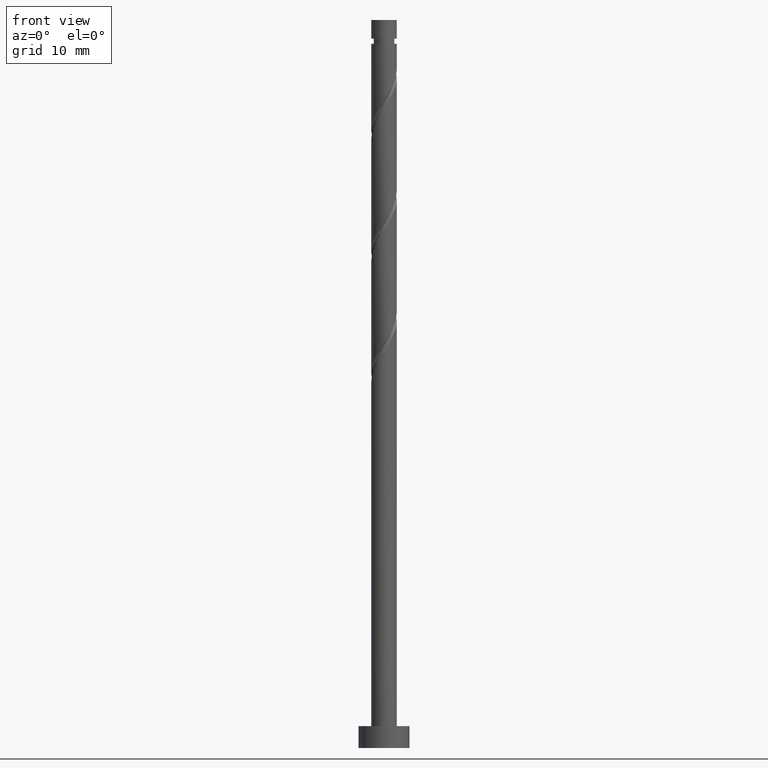
[diagram: clean part render]
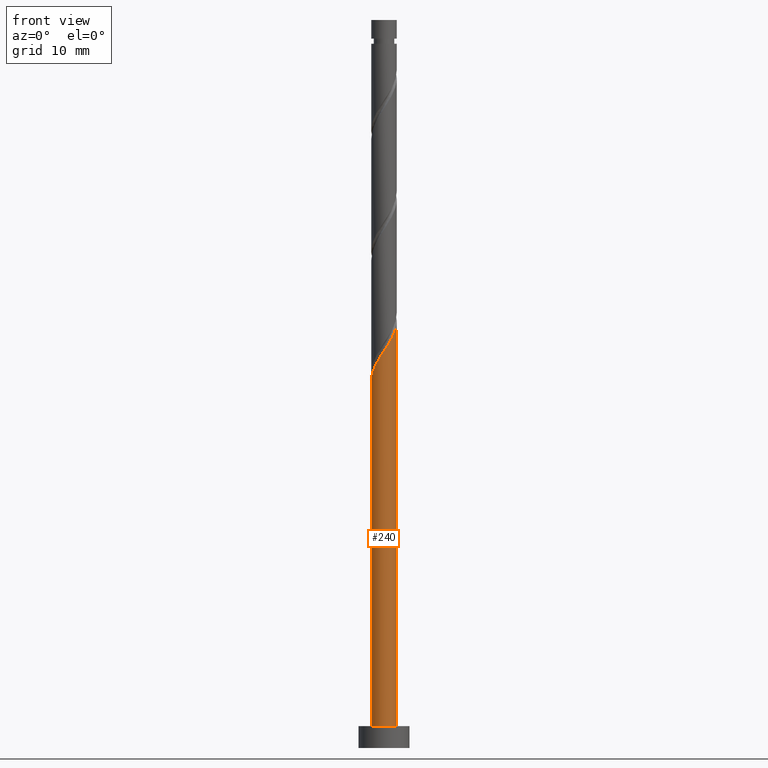
[diagram: same view with one face highlighted and labeled with its STEP entity id]
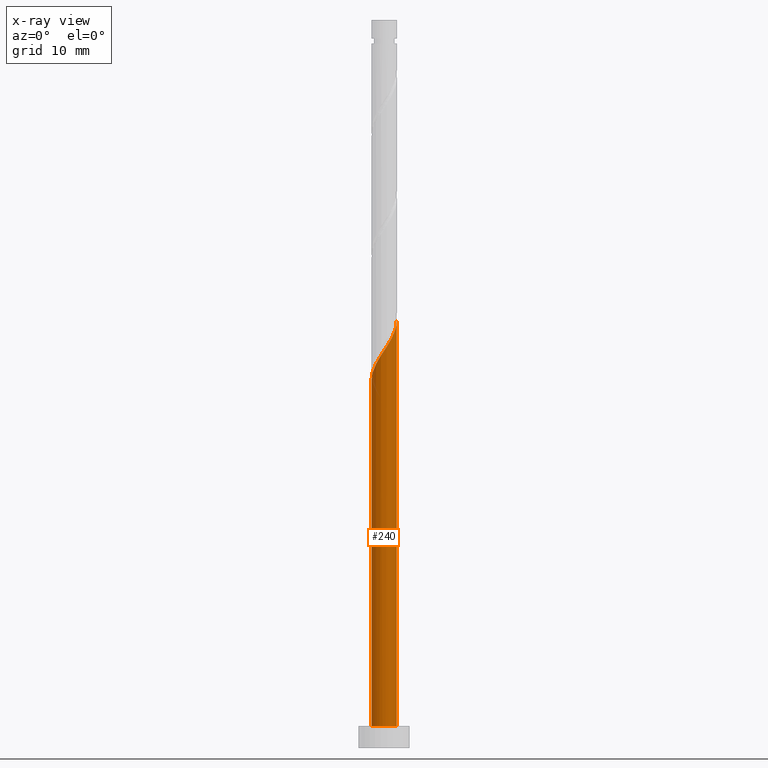
[diagram: x-ray of the same camera — body ghosted, the highlighted face saturated]
A machine part, front view. The second image highlights one B-rep face of the part: STEP entity #240.
The next image is the same camera in x-ray: the body ghosted, the highlighted face saturated — about 0% of this face is hidden behind the body in this view.
In plain terms, the highlighted cylindrical surface (edge-blend (fillet) strip) has radius 1.75 mm, axis along (-0, -0, -1).
Its self-contained STEP definition (entity closure, byte-faithful):
#29 = DIRECTION ( 'NONE',  ( -0.000000000000000000, -0.000000000000000000, -1.000000000000000000 ) ) ;
#52 = CARTESIAN_POINT ( 'NONE',  ( 1.369152359621468751, -1.089918261220984119, 56.92956695420733126 ) ) ;
#150 = CARTESIAN_POINT ( 'NONE',  ( -0.8356091416033647468, -1.537614178677114474, 53.22586325050364309 ) ) ;
#153 = CYLINDRICAL_SURFACE ( 'NONE', #281, 1.750000000000000000 ) ;
#157 = CARTESIAN_POINT ( 'NONE',  ( -1.515489524769285445, -0.9279053362006948191, 51.83697436161474315 ) ) ;
#216 = VERTEX_POINT ( 'NONE', #1209 ) ;
#236 = VECTOR ( 'NONE', #29, 1000.000000000000000 ) ;
#238 = LINE ( 'NONE', #936, #536 ) ;
#240 = ADVANCED_FACE ( 'NONE', ( #639 ), #153, .T. ) ;
#268 = CARTESIAN_POINT ( 'NONE',  ( 0.3482456029873171044, -1.715000000000002744, 55.07771510235549783 ) ) ;
#276 = CARTESIAN_POINT ( 'NONE',  ( 1.659356368983973207, -0.5559104610567555671, 57.85549288013328351 ) ) ;
#280 = DIRECTION ( 'NONE',  ( 0.000000000000000000, 0.000000000000000000, 1.000000000000000000 ) ) ;
#281 = AXIS2_PLACEMENT_3D ( 'NONE', #848, #1315, #613 ) ;
#283 = EDGE_LOOP ( 'NONE', ( #1391, #1460, #385, #1482 ) ) ;
#288 = EDGE_CURVE ( 'NONE', #298, #216, #1250, .T. ) ;
#298 = VERTEX_POINT ( 'NONE', #748 ) ;
#306 = VERTEX_POINT ( 'NONE', #1073 ) ;
#364 = CARTESIAN_POINT ( 'NONE',  ( 1.176970363401351971, -1.331336762922908479, 56.46660399124436225 ) ) ;
#376 = CARTESIAN_POINT ( 'NONE',  ( -1.311110765996656102, -1.159089538943247844, 52.29993732457771927 ) ) ;
#383 = CARTESIAN_POINT ( 'NONE',  ( 0.04584483107229878063, -1.776405095719754357, 54.61475213939252171 ) ) ;
#385 = ORIENTED_EDGE ( 'NONE', *, *, #791, .T. ) ;
#438 =( BOUNDED_CURVE ( )  B_SPLINE_CURVE ( 2, ( #597, #474, #968, #851, #725, #157, #376, #942, #150, #839, #1194, #383, #268, #1084, #1293, #364, #52, #731, #276, #948, #605 ),
 .UNSPECIFIED., .F., .T. ) 
 B_SPLINE_CURVE_WITH_KNOTS ( ( 3, 2, 2, 2, 2, 2, 2, 2, 2, 2, 3 ),
 ( 0.05452480538552893080, 0.05555555555555558023, 0.06944444444444441977, 0.08333333333333337034, 0.09722222222222220989, 0.1111111111111111605, 0.1250000000000000000, 0.1388888888888888395, 0.1527777777777777901, 0.1666666666666666297, 0.1795248053855291737 ),
 .UNSPECIFIED. ) 
 CURVE ( )  GEOMETRIC_REPRESENTATION_ITEM ( )  RATIONAL_B_SPLINE_CURVE ( ( 0.9071930855141263628, 0.9080659294509740853, 0.9090909090909143897, 0.8952797754656489637, 0.9090909090909143897, 0.8952797754656489637, 0.9090909090909143897, 0.8952797754656489637, 0.9090909090909143897, 0.8952797754656489637, 0.9090909090909143897, 0.8952797754656489637, 0.9090909090909143897, 0.8952797754656489637, 0.9090909090909143897, 0.8952797754656489637, 0.9090909090909143897, 0.8952797754656489637, 0.9090909090909143897, 0.8963047551055889350, 0.9071930855141269179 ) ) 
 REPRESENTATION_ITEM ( '' )  );
#474 = CARTESIAN_POINT ( 'NONE',  ( -1.750000000000002887, -0.02257793008103322480, 50.41421092129909454 ) ) ;
#490 = AXIS2_PLACEMENT_3D ( 'NONE', #1387, #280, #965 ) ;
#536 = VECTOR ( 'NONE', #814, 1000.000000000000000 ) ;
#597 = CARTESIAN_POINT ( 'NONE',  ( -1.750000000000001998, 1.277281639759410855E-15, 50.38019354736671573 ) ) ;
#605 = CARTESIAN_POINT ( 'NONE',  ( 1.750000000000001998, -1.266077414849240326E-15, 58.71352688070007275 ) ) ;
#613 = DIRECTION ( 'NONE',  ( -1.000000000000000000, 0.000000000000000000, 0.000000000000000000 ) ) ;
#639 = FACE_OUTER_BOUND ( 'NONE', #283, .T. ) ;
#725 = CARTESIAN_POINT ( 'NONE',  ( -1.628473082076670408, -0.6407615944731072100, 51.37401139865178124 ) ) ;
#731 = CARTESIAN_POINT ( 'NONE',  ( 1.561334355841584198, -0.8484997595190600927, 57.39252991717028607 ) ) ;
#748 = CARTESIAN_POINT ( 'NONE',  ( -1.750000000000000000, 0.000000000000000000, 3.000000000000000000 ) ) ;
#791 = EDGE_CURVE ( 'NONE', #306, #298, #238, .T. ) ;
#814 = DIRECTION ( 'NONE',  ( -0.000000000000000000, -0.000000000000000000, -1.000000000000000000 ) ) ;
#839 = CARTESIAN_POINT ( 'NONE',  ( -0.5644862759827025123, -1.684954615668427635, 53.68882621346659079 ) ) ;
#848 = CARTESIAN_POINT ( 'NONE',  ( 0.000000000000000000, 0.000000000000000000, 100.0000000000000000 ) ) ;
#851 = CARTESIAN_POINT ( 'NONE',  ( -1.741456639384054927, -0.3536178527455198228, 50.91104843568880511 ) ) ;
#856 = EDGE_CURVE ( 'NONE', #1079, #216, #1268, .T. ) ;
#936 = CARTESIAN_POINT ( 'NONE',  ( -1.750000000000000000, 0.000000000000000000, 100.0000000000000000 ) ) ;
#942 = CARTESIAN_POINT ( 'NONE',  ( -1.106732007224026093, -1.390273741685800868, 52.76290028754066697 ) ) ;
#948 = CARTESIAN_POINT ( 'NONE',  ( 1.750000000000003331, -0.2853451506857985764, 58.28360736833443667 ) ) ;
#965 = DIRECTION ( 'NONE',  ( 1.000000000000000000, 0.000000000000000000, 0.000000000000000000 ) ) ;
#968 = CARTESIAN_POINT ( 'NONE',  ( -1.749417510755208127, -0.04514834507553529275, 50.44808547272585741 ) ) ;
#1073 = CARTESIAN_POINT ( 'NONE',  ( -1.750000000000001998, 1.277281639759410658E-15, 50.38019354736671573 ) ) ;
#1079 = VERTEX_POINT ( 'NONE', #1296 ) ;
#1084 = CARTESIAN_POINT ( 'NONE',  ( 0.6506463749023343457, -1.653594904280250244, 55.54067806531844553 ) ) ;
#1168 = CARTESIAN_POINT ( 'NONE',  ( 1.750000000000000000, 2.143131898507867804E-16, 100.0000000000000000 ) ) ;
#1194 = CARTESIAN_POINT ( 'NONE',  ( -0.2593207224552018242, -1.730679855694091662, 54.15178917642956691 ) ) ;
#1209 = CARTESIAN_POINT ( 'NONE',  ( 1.750000000000000000, 2.143131898507867804E-16, 3.000000000000000000 ) ) ;
#1250 = CIRCLE ( 'NONE', #490, 1.750000000000000000 ) ;
#1268 = LINE ( 'NONE', #1168, #236 ) ;
#1293 = CARTESIAN_POINT ( 'NONE',  ( 0.9138083691518438245, -1.492465833601579694, 56.00364102828140744 ) ) ;
#1296 = CARTESIAN_POINT ( 'NONE',  ( 1.750000000000001998, -1.266077414849240326E-15, 58.71352688070007275 ) ) ;
#1315 = DIRECTION ( 'NONE',  ( -0.000000000000000000, -0.000000000000000000, -1.000000000000000000 ) ) ;
#1387 = CARTESIAN_POINT ( 'NONE',  ( 0.000000000000000000, 0.000000000000000000, 3.000000000000000000 ) ) ;
#1391 = ORIENTED_EDGE ( 'NONE', *, *, #856, .F. ) ;
#1460 = ORIENTED_EDGE ( 'NONE', *, *, #1480, .F. ) ;
#1480 = EDGE_CURVE ( 'NONE', #306, #1079, #438, .T. ) ;
#1482 = ORIENTED_EDGE ( 'NONE', *, *, #288, .T. ) ;